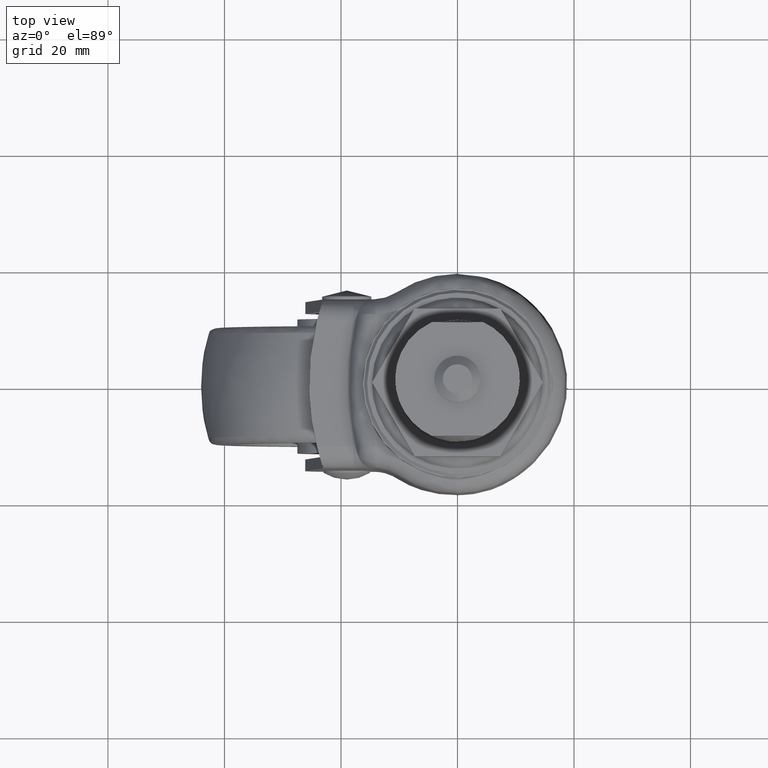
[diagram: clean part render]
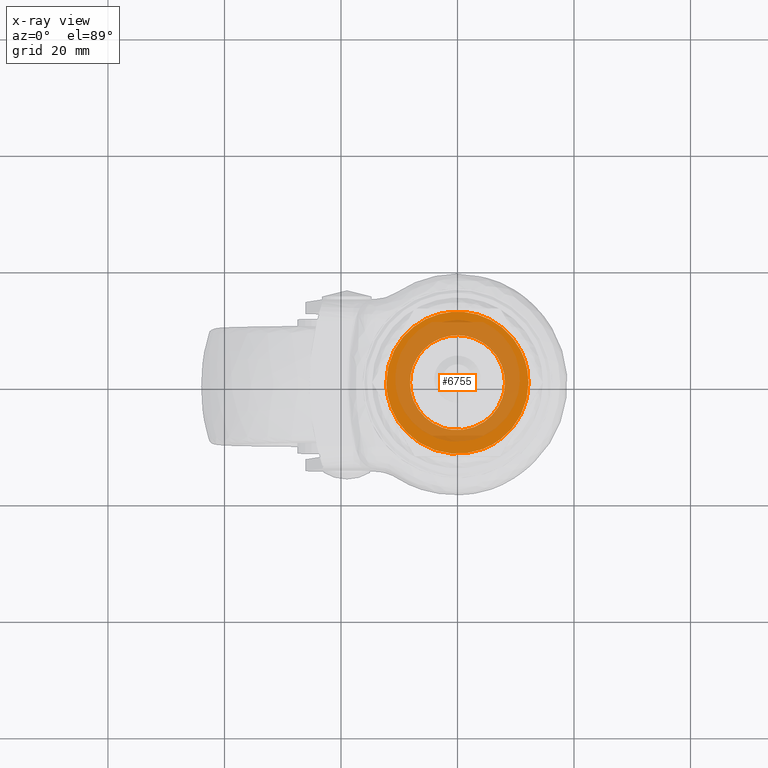
[diagram: x-ray — body ghosted, one internal face saturated and labeled with its STEP entity id]
A machine part, top view, then the same camera in x-ray: the body is ghosted and one INTERNAL B-rep face — a face not visible from any outside direction — is saturated and labeled: STEP entity #6755.
In plain terms, the highlighted face is a freeform B-spline surface patch.
Its self-contained STEP definition (entity closure, byte-faithful):
#4882=CARTESIAN_POINT('',(0.071121264434776,8.149689672971928,-1.898178758164915));
#4883=VERTEX_POINT('',#4882);
#4889=CARTESIAN_POINT('',(-8.149999999999999,7.105427E-015,-1.898178758164915));
#4890=VERTEX_POINT('',#4889);
#4891=CARTESIAN_POINT('',(0.071121264434776,8.149689672971928,-1.898178758164915));
#4892=CARTESIAN_POINT('',(0.035561309311753,8.150000000000004,-1.898178758164915));
#4893=CARTESIAN_POINT('',(0.0,8.150000000000006,-1.898178758164915));
#4894=CARTESIAN_POINT('',(-8.149999999999999,8.150000000000006,-1.898178758164915));
#4895=CARTESIAN_POINT('',(-8.149999999999999,7.105427E-015,-1.898178758164915));
#4903=(BOUNDED_CURVE()B_SPLINE_CURVE(2,(#4891,#4892,#4893,#4894,#4895),.UNSPECIFIED.,.F.,.U.)B_SPLINE_CURVE_WITH_KNOTS((3,2,3),(0.248460105659695,0.250000000000000,0.500000000000000),.UNSPECIFIED.)CURVE()GEOMETRIC_REPRESENTATION_ITEM()RATIONAL_B_SPLINE_CURVE((0.996414028088098,0.998195901560141,1.0,0.707106781186548,1.0))REPRESENTATION_ITEM(''));
#4904=EDGE_CURVE('',#4883,#4890,#4903,.T.);
#4906=CARTESIAN_POINT('',(-1.011643217053294,-8.086969642665286,-1.898178758164915));
#4907=VERTEX_POINT('',#4906);
#4908=CARTESIAN_POINT('',(-8.149999999999999,7.105427E-015,-1.898178758164915));
#4909=CARTESIAN_POINT('',(-8.149999999999999,-7.193993591040282,-1.898178758164914));
#4910=CARTESIAN_POINT('',(-1.011643217053294,-8.086969642665288,-1.898178758164915));
#4918=(BOUNDED_CURVE()B_SPLINE_CURVE(2,(#4908,#4909,#4910),.UNSPECIFIED.,.F.,.U.)B_SPLINE_CURVE_WITH_KNOTS((3,3),(0.500000000000000,0.728526071025017),.UNSPECIFIED.)CURVE()GEOMETRIC_REPRESENTATION_ITEM()RATIONAL_B_SPLINE_CURVE((1.0,0.732265053898765,0.954005430266409))REPRESENTATION_ITEM(''));
#4919=EDGE_CURVE('',#4890,#4907,#4918,.T.);
#4969=CARTESIAN_POINT('',(8.149999999999999,7.105427E-015,-1.898178758164915));
#4970=VERTEX_POINT('',#4969);
#4971=CARTESIAN_POINT('',(-1.011643217053294,-8.086969642665286,-1.898178758164915));
#4972=CARTESIAN_POINT('',(-0.507785159501866,-8.149999999999992,-1.898178758164915));
#4973=CARTESIAN_POINT('',(0.0,-8.149999999999992,-1.898178758164915));
#4974=CARTESIAN_POINT('',(8.149999999999999,-8.149999999999992,-1.898178758164915));
#4975=CARTESIAN_POINT('',(8.149999999999999,7.105427E-015,-1.898178758164915));
#4983=(BOUNDED_CURVE()B_SPLINE_CURVE(2,(#4971,#4972,#4973,#4974,#4975),.UNSPECIFIED.,.F.,.U.)B_SPLINE_CURVE_WITH_KNOTS((3,2,3),(0.728526071025016,0.750000000000000,1.0),.UNSPECIFIED.)CURVE()GEOMETRIC_REPRESENTATION_ITEM()RATIONAL_B_SPLINE_CURVE((0.954005430266407,0.974841727287782,1.0,0.707106781186548,1.0))REPRESENTATION_ITEM(''));
#4984=EDGE_CURVE('',#4907,#4970,#4983,.T.);
#4986=CARTESIAN_POINT('',(8.149999999999999,7.105427E-015,-1.898178758164915));
#4987=CARTESIAN_POINT('',(8.149999999999999,8.079186366105139,-1.898178758164915));
#4988=CARTESIAN_POINT('',(0.071121264434776,8.149689672971928,-1.898178758164915));
#4996=(BOUNDED_CURVE()B_SPLINE_CURVE(2,(#4986,#4987,#4988),.UNSPECIFIED.,.F.,.U.)B_SPLINE_CURVE_WITH_KNOTS((3,3),(0.0,0.248460105659695),.UNSPECIFIED.)CURVE()GEOMETRIC_REPRESENTATION_ITEM()RATIONAL_B_SPLINE_CURVE((1.0,0.708910879626406,0.996414028088098))REPRESENTATION_ITEM(''));
#4997=EDGE_CURVE('',#4970,#4883,#4996,.T.);
#6047=CARTESIAN_POINT('',(4.342269617075402,-11.400074006700700,-1.898178758164921));
#6048=VERTEX_POINT('',#6047);
#6049=CARTESIAN_POINT('',(-12.199057000000099,0.0,-1.898178758164915));
#6050=VERTEX_POINT('',#6049);
#6051=CARTESIAN_POINT('',(4.342269617075401,-11.400074006700695,-1.898178758164921));
#6052=CARTESIAN_POINT('',(2.244641752915888,-12.199057000000103,-1.898178758164915));
#6053=CARTESIAN_POINT('',(0.0,-12.199057000000099,-1.898178758164915));
#6054=CARTESIAN_POINT('',(-12.199057000000099,-12.199057000000099,-1.898178758164915));
#6055=CARTESIAN_POINT('',(-12.199057000000099,0.0,-1.898178758164915));
#6063=(BOUNDED_CURVE()B_SPLINE_CURVE(2,(#6051,#6052,#6053,#6054,#6055),.UNSPECIFIED.,.F.,.U.)B_SPLINE_CURVE_WITH_KNOTS((3,2,3),(0.689552768651248,0.750000000000000,1.0),.UNSPECIFIED.)CURVE()GEOMETRIC_REPRESENTATION_ITEM()RATIONAL_B_SPLINE_CURVE((0.892609505760435,0.929181663367610,1.0,0.707106781186547,1.0))REPRESENTATION_ITEM(''));
#6064=EDGE_CURVE('',#6048,#6050,#6063,.T.);
#6066=CARTESIAN_POINT('',(11.982978166710801,2.285875338785698,-1.898178758164920));
#6067=VERTEX_POINT('',#6066);
#6068=CARTESIAN_POINT('',(-12.199057000000099,0.0,-1.898178758164915));
#6069=CARTESIAN_POINT('',(-12.199057000000099,12.199057000000099,-1.898178758164915));
#6070=CARTESIAN_POINT('',(0.0,12.199057000000099,-1.898178758164915));
#6071=CARTESIAN_POINT('',(10.091937622553445,12.199057000000099,-1.898178758164915));
#6072=CARTESIAN_POINT('',(11.982978166710804,2.285875338785698,-1.898178758164921));
#6080=(BOUNDED_CURVE()B_SPLINE_CURVE(2,(#6068,#6069,#6070,#6071,#6072),.UNSPECIFIED.,.F.,.U.)B_SPLINE_CURVE_WITH_KNOTS((3,2,3),(0.0,0.250000000000000,0.467838633726542),.UNSPECIFIED.)CURVE()GEOMETRIC_REPRESENTATION_ITEM()RATIONAL_B_SPLINE_CURVE((1.0,0.707106781186547,1.0,0.744786165543634,0.934335795135961))REPRESENTATION_ITEM(''));
#6081=EDGE_CURVE('',#6050,#6067,#6080,.T.);
#6165=CARTESIAN_POINT('',(12.199057000000099,0.0,-1.898178758164915));
#6166=VERTEX_POINT('',#6165);
#6167=CARTESIAN_POINT('',(12.199057000000099,0.0,-1.898178758164915));
#6168=CARTESIAN_POINT('',(12.199057000000099,-8.407436424574666,-1.898178758164916));
#6169=CARTESIAN_POINT('',(4.342269617075402,-11.400074006700700,-1.898178758164921));
#6177=(BOUNDED_CURVE()B_SPLINE_CURVE(2,(#6167,#6168,#6169),.UNSPECIFIED.,.F.,.U.)B_SPLINE_CURVE_WITH_KNOTS((3,3),(0.500000000000000,0.689552768651247),.UNSPECIFIED.)CURVE()GEOMETRIC_REPRESENTATION_ITEM()RATIONAL_B_SPLINE_CURVE((1.0,0.777925117818939,0.892609505760434))REPRESENTATION_ITEM(''));
#6178=EDGE_CURVE('',#6166,#6048,#6177,.T.);
#6210=CARTESIAN_POINT('',(11.982978166710804,2.285875338785698,-1.898178758164921));
#6211=CARTESIAN_POINT('',(12.199057000000094,1.153150401161047,-1.898178758164915));
#6212=CARTESIAN_POINT('',(12.199057000000099,0.0,-1.898178758164915));
#6220=(BOUNDED_CURVE()B_SPLINE_CURVE(2,(#6210,#6211,#6212),.UNSPECIFIED.,.F.,.U.)B_SPLINE_CURVE_WITH_KNOTS((3,3),(0.467838633726542,0.500000000000000),.UNSPECIFIED.)CURVE()GEOMETRIC_REPRESENTATION_ITEM()RATIONAL_B_SPLINE_CURVE((0.934335795135961,0.962320615642914,1.0))REPRESENTATION_ITEM(''));
#6221=EDGE_CURVE('',#6067,#6166,#6220,.T.);
#6738=CARTESIAN_POINT('',(-13.417742430812590,-13.414345591119799,-1.898178758164915));
#6739=CARTESIAN_POINT('',(13.417741558268039,-13.414345591119799,-1.898178758164915));
#6740=CARTESIAN_POINT('',(-13.417742430812590,13.417468705517020,-1.898178758164915));
#6741=CARTESIAN_POINT('',(13.417741558268039,13.417468705517020,-1.898178758164915));
#6742=B_SPLINE_SURFACE_WITH_KNOTS('',1,1,((#6738,#6740),(#6739,#6741)),.UNSPECIFIED.,.F.,.F.,.U.,(2,2),(2,2),(0.0,26.835483989080629),(0.0,26.831814296636828),.UNSPECIFIED.);
#6743=ORIENTED_EDGE('',*,*,#6064,.F.);
#6744=ORIENTED_EDGE('',*,*,#6178,.F.);
#6745=ORIENTED_EDGE('',*,*,#6221,.F.);
#6746=ORIENTED_EDGE('',*,*,#6081,.F.);
#6747=EDGE_LOOP('',(#6743,#6744,#6745,#6746));
#6748=FACE_OUTER_BOUND('',#6747,.T.);
#6749=ORIENTED_EDGE('',*,*,#4997,.F.);
#6750=ORIENTED_EDGE('',*,*,#4984,.F.);
#6751=ORIENTED_EDGE('',*,*,#4919,.F.);
#6752=ORIENTED_EDGE('',*,*,#4904,.F.);
#6753=EDGE_LOOP('',(#6749,#6750,#6751,#6752));
#6754=FACE_BOUND('',#6753,.T.);
#6755=ADVANCED_FACE('',(#6748,#6754),#6742,.T.);